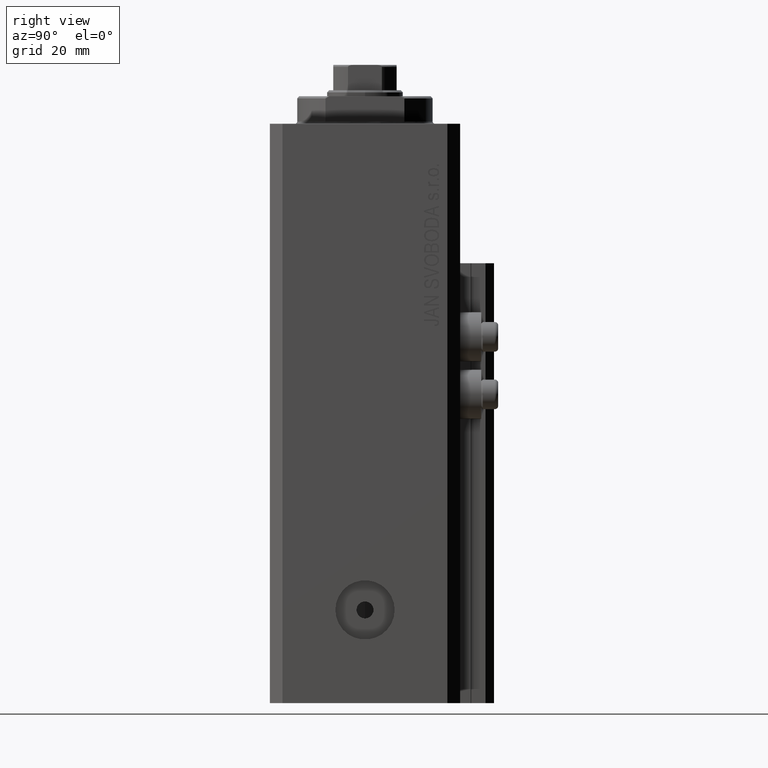
[diagram: clean part render]
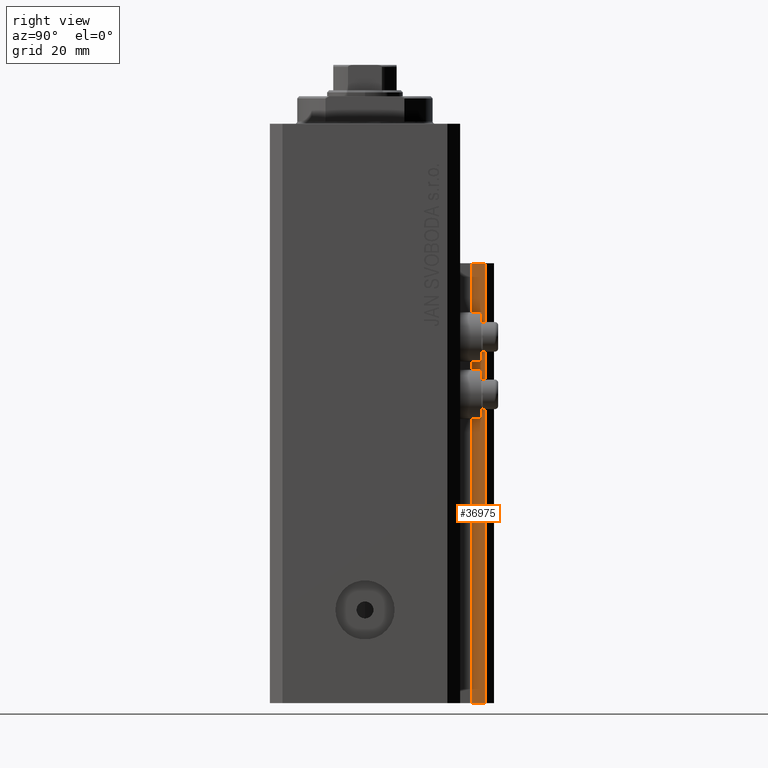
[diagram: same view with one face highlighted and labeled with its STEP entity id]
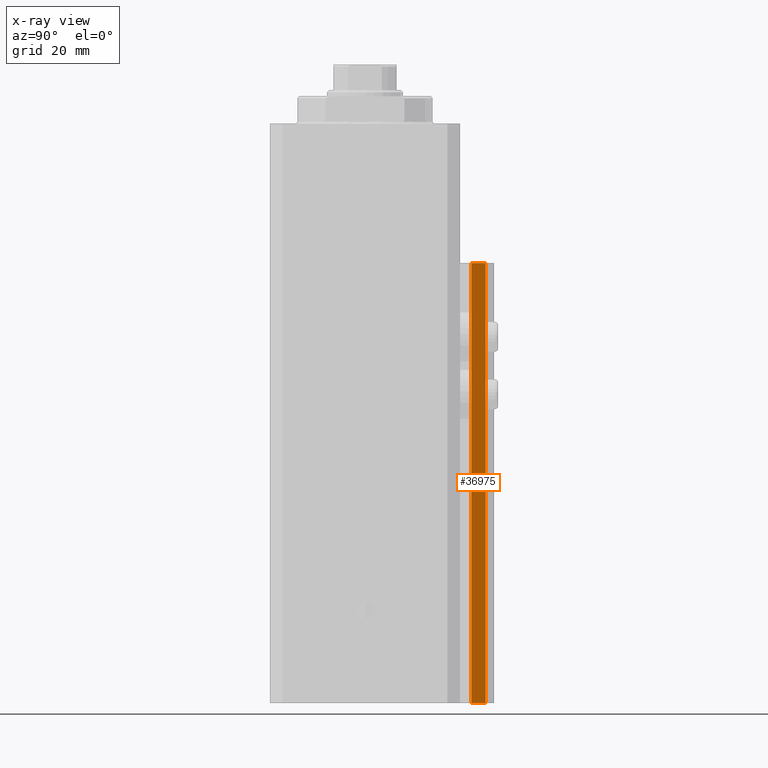
[diagram: x-ray of the same camera — body ghosted, the highlighted face saturated]
A machine part, right view. The second image highlights one B-rep face of the part: STEP entity #36975.
The next image is the same camera in x-ray: the body ghosted, the highlighted face saturated — about 0% of this face is hidden behind the body in this view.
In plain terms, the highlighted planar face has unit normal (1, 0, 0).
Its self-contained STEP definition (entity closure, byte-faithful):
#2681 = DIRECTION ( 'NONE',  ( 1.000000000000000000, 0.000000000000000000, 0.000000000000000000 ) ) ;
#5534 = CARTESIAN_POINT ( 'NONE',  ( 12.00000000000000355, 25.19999999999951257, -33.00000000000000000 ) ) ;
#6214 = VERTEX_POINT ( 'NONE', #36155 ) ;
#6858 = AXIS2_PLACEMENT_3D ( 'NONE', #20630, #2681, #35226 ) ;
#8130 = CARTESIAN_POINT ( 'NONE',  ( 12.00000000000000178, 28.49999999999950973, -137.0000000000000000 ) ) ;
#8658 = VERTEX_POINT ( 'NONE', #5534 ) ;
#9336 = VECTOR ( 'NONE', #10650, 1000.000000000000000 ) ;
#9376 = ORIENTED_EDGE ( 'NONE', *, *, #15743, .T. ) ;
#10650 = DIRECTION ( 'NONE',  ( 0.000000000000000000, 0.000000000000000000, 1.000000000000000000 ) ) ;
#10888 = CARTESIAN_POINT ( 'NONE',  ( 12.00000000000000355, 25.19999999999951257, -137.0000000000000000 ) ) ;
#11970 = DIRECTION ( 'NONE',  ( 0.000000000000000000, 0.000000000000000000, 1.000000000000000000 ) ) ;
#12317 = CARTESIAN_POINT ( 'NONE',  ( 12.00000000000000178, 25.19999999999951257, -33.00000000000000000 ) ) ;
#13214 = ORIENTED_EDGE ( 'NONE', *, *, #24805, .T. ) ;
#15743 = EDGE_CURVE ( 'NONE', #21120, #6214, #30946, .T. ) ;
#18286 = LINE ( 'NONE', #10888, #9336 ) ;
#19304 = VERTEX_POINT ( 'NONE', #46964 ) ;
#20630 = CARTESIAN_POINT ( 'NONE',  ( 12.00000000000000178, 25.19999999999951257, -137.0000000000000000 ) ) ;
#21120 = VERTEX_POINT ( 'NONE', #39329 ) ;
#23289 = CARTESIAN_POINT ( 'NONE',  ( 12.00000000000000178, 25.19999999999951257, -137.0000000000000000 ) ) ;
#24805 = EDGE_CURVE ( 'NONE', #6214, #19304, #30139, .T. ) ;
#26900 = DIRECTION ( 'NONE',  ( 0.000000000000000000, 1.000000000000000000, 0.000000000000000000 ) ) ;
#27586 = VECTOR ( 'NONE', #26900, 1000.000000000000000 ) ;
#28779 = ORIENTED_EDGE ( 'NONE', *, *, #30214, .F. ) ;
#30139 = LINE ( 'NONE', #8130, #44117 ) ;
#30214 = EDGE_CURVE ( 'NONE', #8658, #19304, #45092, .T. ) ;
#30946 = LINE ( 'NONE', #23289, #39261 ) ;
#32626 = EDGE_CURVE ( 'NONE', #21120, #8658, #18286, .T. ) ;
#35226 = DIRECTION ( 'NONE',  ( 0.000000000000000000, 0.000000000000000000, -1.000000000000000000 ) ) ;
#35253 = EDGE_LOOP ( 'NONE', ( #28779, #35433, #9376, #13214 ) ) ;
#35433 = ORIENTED_EDGE ( 'NONE', *, *, #32626, .F. ) ;
#36155 = CARTESIAN_POINT ( 'NONE',  ( 12.00000000000000178, 28.49999999999950973, -137.0000000000000000 ) ) ;
#36975 = ADVANCED_FACE ( 'NONE', ( #42887 ), #43117, .T. ) ;
#39261 = VECTOR ( 'NONE', #45314, 1000.000000000000000 ) ;
#39329 = CARTESIAN_POINT ( 'NONE',  ( 12.00000000000000355, 25.19999999999951257, -137.0000000000000000 ) ) ;
#42887 = FACE_OUTER_BOUND ( 'NONE', #35253, .T. ) ;
#43117 = PLANE ( 'NONE',  #6858 ) ;
#44117 = VECTOR ( 'NONE', #11970, 1000.000000000000000 ) ;
#45092 = LINE ( 'NONE', #12317, #27586 ) ;
#45314 = DIRECTION ( 'NONE',  ( 0.000000000000000000, 1.000000000000000000, 0.000000000000000000 ) ) ;
#46964 = CARTESIAN_POINT ( 'NONE',  ( 12.00000000000000178, 28.49999999999950973, -33.00000000000000000 ) ) ;